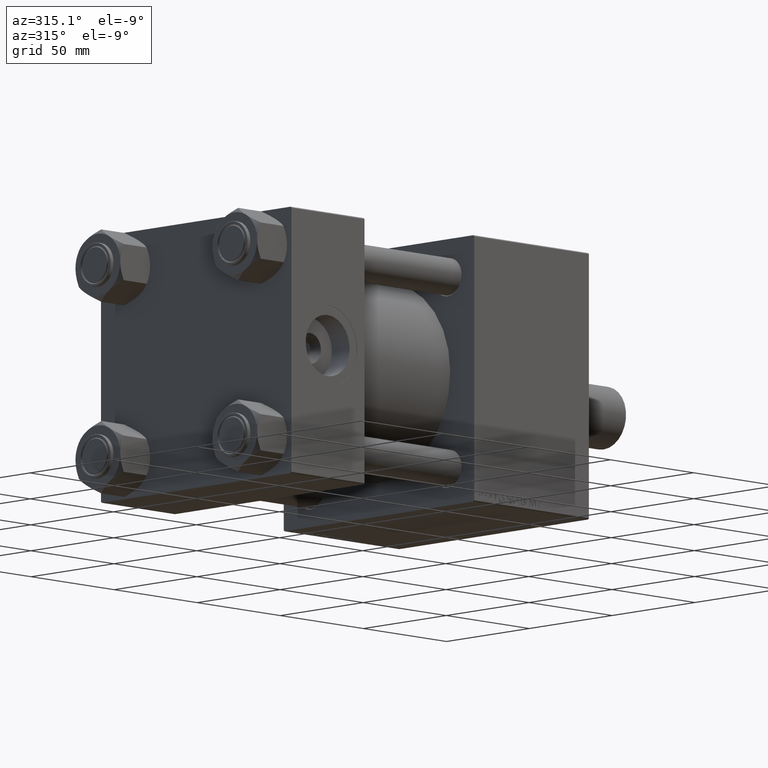
[diagram: clean part render]
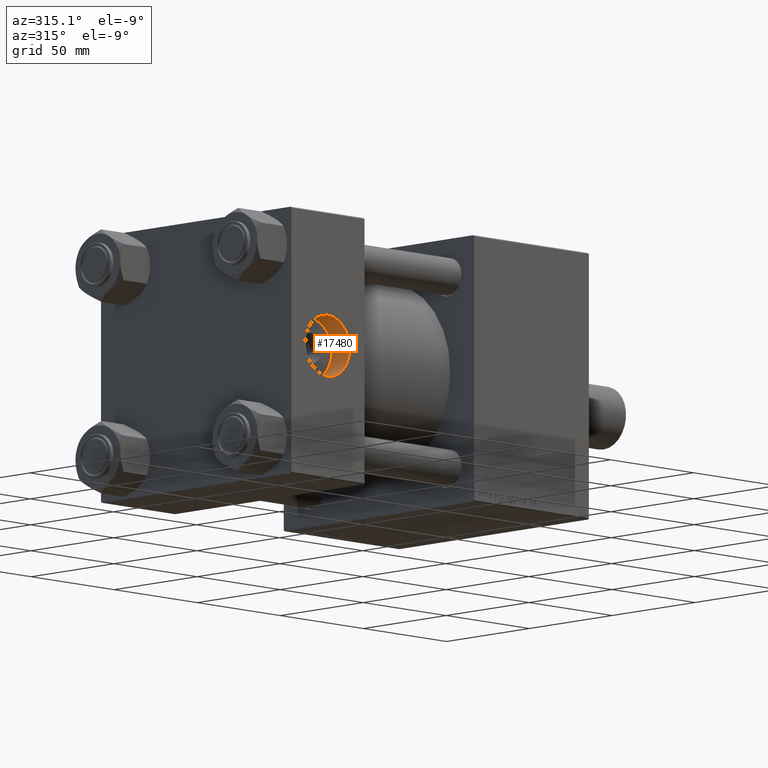
[diagram: same view with one face highlighted and labeled with its STEP entity id]
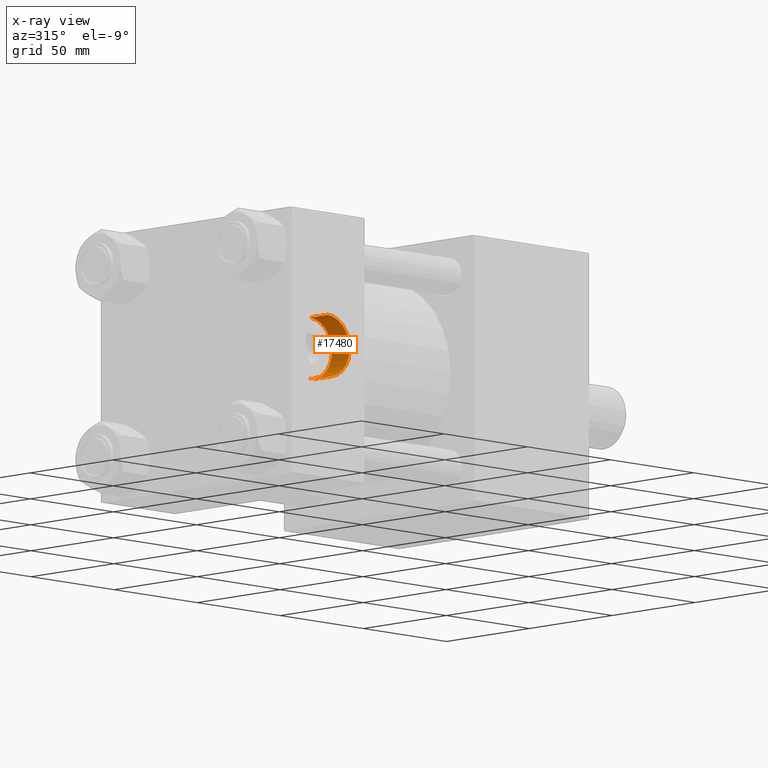
[diagram: x-ray of the same camera — body ghosted, the highlighted face saturated]
A machine part, auxiliary view. The second image highlights one B-rep face of the part: STEP entity #17480.
The next image is the same camera in x-ray: the body ghosted, the highlighted face saturated — about 0% of this face is hidden behind the body in this view.
In plain terms, the highlighted cylindrical surface (edge-blend (fillet) strip) has radius 13.22 mm, axis along (-0, -1, -0).
Its self-contained STEP definition (entity closure, byte-faithful):
#371 = CARTESIAN_POINT ( 'NONE',  ( 22.00000000000000000, -57.30000000000001137, 13.22000000000000419 ) ) ;
#714 = CYLINDRICAL_SURFACE ( 'NONE', #17993, 13.22000000000000419 ) ;
#910 = CARTESIAN_POINT ( 'NONE',  ( 22.00000000000000000, -46.60000000000000853, -13.22000000000000242 ) ) ;
#1795 = VERTEX_POINT ( 'NONE', #371 ) ;
#4473 = EDGE_CURVE ( 'NONE', #30897, #1795, #6844, .T. ) ;
#5049 = LINE ( 'NONE', #910, #20848 ) ;
#5746 = ORIENTED_EDGE ( 'NONE', *, *, #32348, .T. ) ;
#6368 = AXIS2_PLACEMENT_3D ( 'NONE', #6459, #40517, #18141 ) ;
#6459 = CARTESIAN_POINT ( 'NONE',  ( 22.00000000000000000, -46.60000000000000853, 9.454242944073594720E-16 ) ) ;
#6844 = CIRCLE ( 'NONE', #42449, 13.22000000000000419 ) ;
#12382 = CARTESIAN_POINT ( 'NONE',  ( 22.00000000000000000, -46.60000000000000853, 9.454242944073594720E-16 ) ) ;
#12717 = ORIENTED_EDGE ( 'NONE', *, *, #13579, .F. ) ;
#13579 = EDGE_CURVE ( 'NONE', #37251, #21273, #28751, .T. ) ;
#14734 = ORIENTED_EDGE ( 'NONE', *, *, #34237, .F. ) ;
#16279 = DIRECTION ( 'NONE',  ( 0.000000000000000000, 0.000000000000000000, -1.000000000000000000 ) ) ;
#17480 = ADVANCED_FACE ( 'NONE', ( #31834 ), #714, .F. ) ;
#17993 = AXIS2_PLACEMENT_3D ( 'NONE', #12382, #19920, #16279 ) ;
#18141 = DIRECTION ( 'NONE',  ( 0.000000000000000000, 0.000000000000000000, -1.000000000000000000 ) ) ;
#18425 = DIRECTION ( 'NONE',  ( 0.000000000000000000, 0.000000000000000000, -1.000000000000000000 ) ) ;
#19920 = DIRECTION ( 'NONE',  ( -0.000000000000000000, -1.000000000000000000, -8.673617379884036705E-17 ) ) ;
#20848 = VECTOR ( 'NONE', #20876, 1000.000000000000000 ) ;
#20876 = DIRECTION ( 'NONE',  ( -0.000000000000000000, -1.000000000000000000, -8.673617379884036705E-17 ) ) ;
#21273 = VERTEX_POINT ( 'NONE', #42521 ) ;
#21334 = CARTESIAN_POINT ( 'NONE',  ( 22.00000000000000000, -46.60000000000000853, 13.22000000000000597 ) ) ;
#25956 = CARTESIAN_POINT ( 'NONE',  ( 22.00000000000000000, -57.30000000000001137, 1.734723475976770117E-17 ) ) ;
#28751 = CIRCLE ( 'NONE', #6368, 13.22000000000000419 ) ;
#30687 = EDGE_LOOP ( 'NONE', ( #14734, #12717, #5746, #35594 ) ) ;
#30839 = VECTOR ( 'NONE', #44662, 1000.000000000000000 ) ;
#30897 = VERTEX_POINT ( 'NONE', #45195 ) ;
#31834 = FACE_OUTER_BOUND ( 'NONE', #30687, .T. ) ;
#32348 = EDGE_CURVE ( 'NONE', #37251, #30897, #5049, .T. ) ;
#34237 = EDGE_CURVE ( 'NONE', #21273, #1795, #37401, .T. ) ;
#35594 = ORIENTED_EDGE ( 'NONE', *, *, #4473, .T. ) ;
#37235 = CARTESIAN_POINT ( 'NONE',  ( 22.00000000000000000, -46.60000000000000853, -13.22000000000000242 ) ) ;
#37251 = VERTEX_POINT ( 'NONE', #37235 ) ;
#37401 = LINE ( 'NONE', #21334, #30839 ) ;
#37876 = DIRECTION ( 'NONE',  ( 0.000000000000000000, -1.000000000000000000, -8.673617379884036705E-17 ) ) ;
#40517 = DIRECTION ( 'NONE',  ( 0.000000000000000000, -1.000000000000000000, -8.673617379884036705E-17 ) ) ;
#42449 = AXIS2_PLACEMENT_3D ( 'NONE', #25956, #37876, #18425 ) ;
#42521 = CARTESIAN_POINT ( 'NONE',  ( 22.00000000000000000, -46.60000000000000853, 13.22000000000000597 ) ) ;
#44662 = DIRECTION ( 'NONE',  ( -0.000000000000000000, -1.000000000000000000, -8.673617379884036705E-17 ) ) ;
#45195 = CARTESIAN_POINT ( 'NONE',  ( 22.00000000000000000, -57.30000000000001137, -13.22000000000000419 ) ) ;